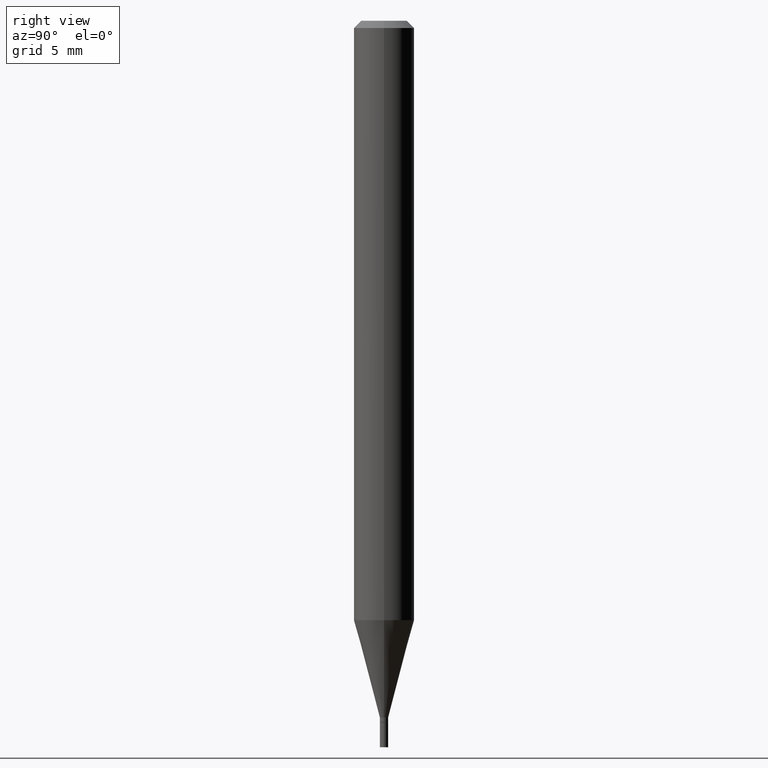
[diagram: clean part render]
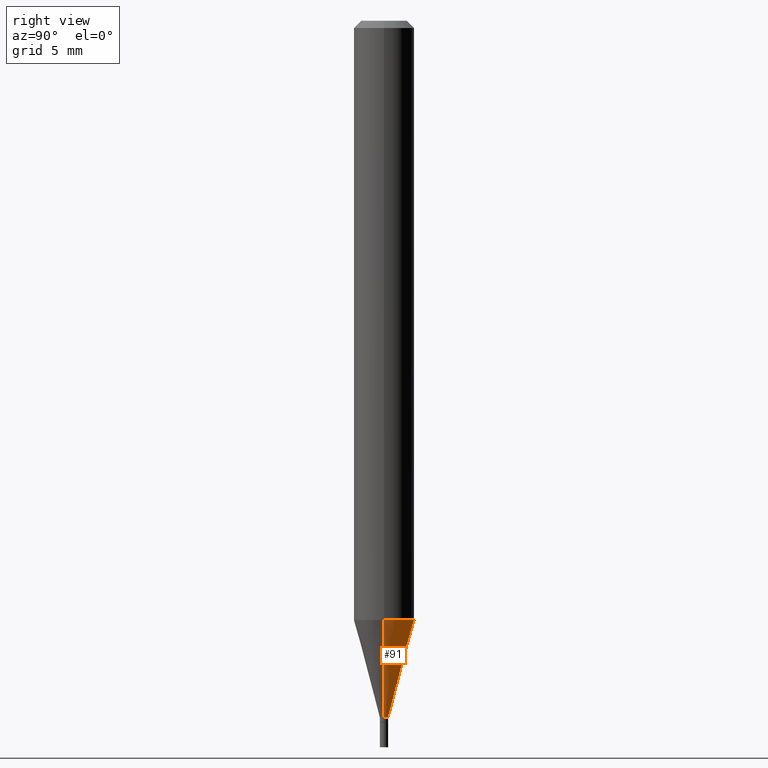
[diagram: same view with one face highlighted and labeled with its STEP entity id]
A machine part, right view. The second image highlights one B-rep face of the part: STEP entity #91.
In plain terms, the highlighted conical surface has half-angle 15 deg.
Its self-contained STEP definition (entity closure, byte-faithful):
#4 = CARTESIAN_POINT ( 'NONE',  ( -0.06249999999999999306, -3.876511606232199217E-15, -1.237469256391281025 ) ) ;
#7 = DIRECTION ( 'NONE',  ( -2.445468806185136597E-29, 3.491481338843145583E-15, 1.000000000000000000 ) ) ;
#16 = EDGE_CURVE ( 'NONE', #371, #186, #267, .T. ) ;
#26 = CARTESIAN_POINT ( 'NONE',  ( -0.008499999999999922548, -4.420178560143938947E-15, -1.439000000000000057 ) ) ;
#60 = DIRECTION ( 'NONE',  ( 1.000000000000000000, -6.982962677686262766E-15, 0.000000000000000000 ) ) ;
#62 = EDGE_CURVE ( 'NONE', #165, #371, #174, .T. ) ;
#65 = VECTOR ( 'NONE', #145, 39.37007874015747433 ) ;
#91 = ADVANCED_FACE ( 'NONE', ( #232 ), #404, .T. ) ;
#96 = EDGE_CURVE ( 'NONE', #165, #166, #234, .T. ) ;
#104 = CARTESIAN_POINT ( 'NONE',  ( 0.008499999999999922548, -5.083596829355619552E-15, -1.439000000000000057 ) ) ;
#115 = DIRECTION ( 'NONE',  ( -2.445468806185136597E-29, 3.491481338843145583E-15, 1.000000000000000000 ) ) ;
#122 = DIRECTION ( 'NONE',  ( 1.000000000000000000, -6.982962677686225690E-15, 0.000000000000000000 ) ) ;
#131 = ORIENTED_EDGE ( 'NONE', *, *, #96, .T. ) ;
#133 = CARTESIAN_POINT ( 'NONE',  ( 3.026192465117994899E-29, -4.320600816082261833E-15, -1.237469256391281025 ) ) ;
#145 = DIRECTION ( 'NONE',  ( 0.2588190451025214611, 1.565188264969621573E-15, 0.9659258262890682012 ) ) ;
#165 = VERTEX_POINT ( 'NONE', #352 ) ;
#166 = VERTEX_POINT ( 'NONE', #26 ) ;
#174 = LINE ( 'NONE', #104, #65 ) ;
#183 = CARTESIAN_POINT ( 'NONE',  ( 0.06249999999999999306, -4.757035983437653502E-15, -1.237469256391281025 ) ) ;
#186 = VERTEX_POINT ( 'NONE', #4 ) ;
#192 = LINE ( 'NONE', #252, #336 ) ;
#211 = AXIS2_PLACEMENT_3D ( 'NONE', #429, #7, #122 ) ;
#232 = FACE_OUTER_BOUND ( 'NONE', #388, .T. ) ;
#234 = CIRCLE ( 'NONE', #321, 0.008499999999999922548 ) ;
#252 = CARTESIAN_POINT ( 'NONE',  ( -0.008499999999999922548, -4.963845514055678678E-15, -1.439000000000000057 ) ) ;
#267 = CIRCLE ( 'NONE', #299, 0.06250000000000000000 ) ;
#279 = EDGE_CURVE ( 'NONE', #166, #186, #192, .T. ) ;
#292 = CARTESIAN_POINT ( 'NONE',  ( 3.519029612100411702E-29, -5.024241646595286853E-15, -1.439000000000000057 ) ) ;
#299 = AXIS2_PLACEMENT_3D ( 'NONE', #133, #368, #60 ) ;
#321 = AXIS2_PLACEMENT_3D ( 'NONE', #292, #115, #466 ) ;
#336 = VECTOR ( 'NONE', #459, 39.37007874015747433 ) ;
#338 = ORIENTED_EDGE ( 'NONE', *, *, #62, .F. ) ;
#352 = CARTESIAN_POINT ( 'NONE',  ( 0.008499999999999922548, -5.083596829355619552E-15, -1.439000000000000057 ) ) ;
#366 = ORIENTED_EDGE ( 'NONE', *, *, #279, .T. ) ;
#368 = DIRECTION ( 'NONE',  ( -2.445468806185136597E-29, 3.491481338843145583E-15, 1.000000000000000000 ) ) ;
#371 = VERTEX_POINT ( 'NONE', #183 ) ;
#388 = EDGE_LOOP ( 'NONE', ( #131, #366, #449, #338 ) ) ;
#404 = CONICAL_SURFACE ( 'NONE', #211, 0.008499999999999922548, 0.2617993877991501295 ) ;
#429 = CARTESIAN_POINT ( 'NONE',  ( 3.519029612100411702E-29, -5.024241646595286853E-15, -1.439000000000000057 ) ) ;
#449 = ORIENTED_EDGE ( 'NONE', *, *, #16, .F. ) ;
#459 = DIRECTION ( 'NONE',  ( -0.2588190451025214611, 5.211531920934551042E-15, 0.9659258262890682012 ) ) ;
#466 = DIRECTION ( 'NONE',  ( 1.000000000000000000, -6.982962677686225690E-15, 0.000000000000000000 ) ) ;